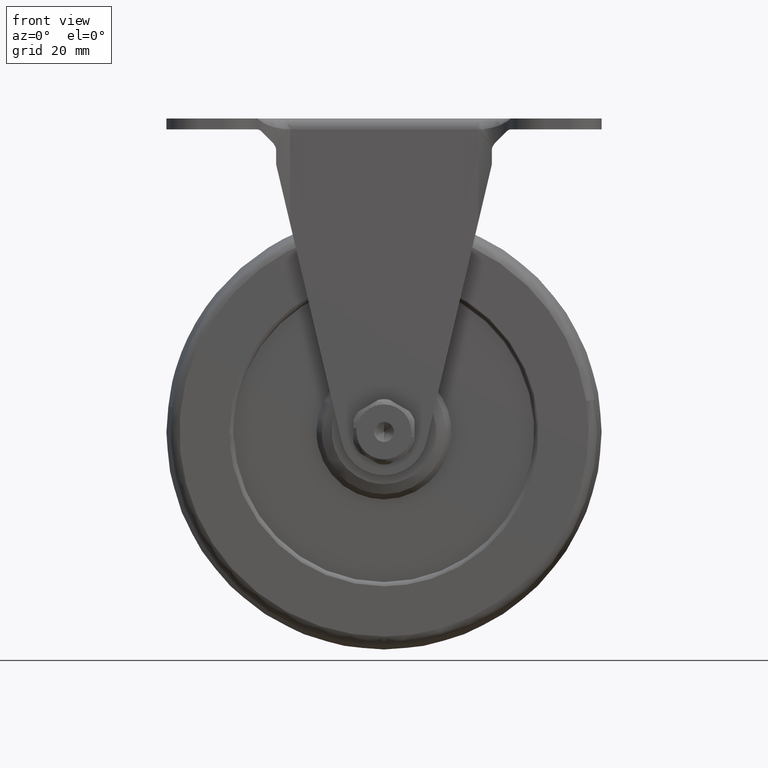
[diagram: clean part render]
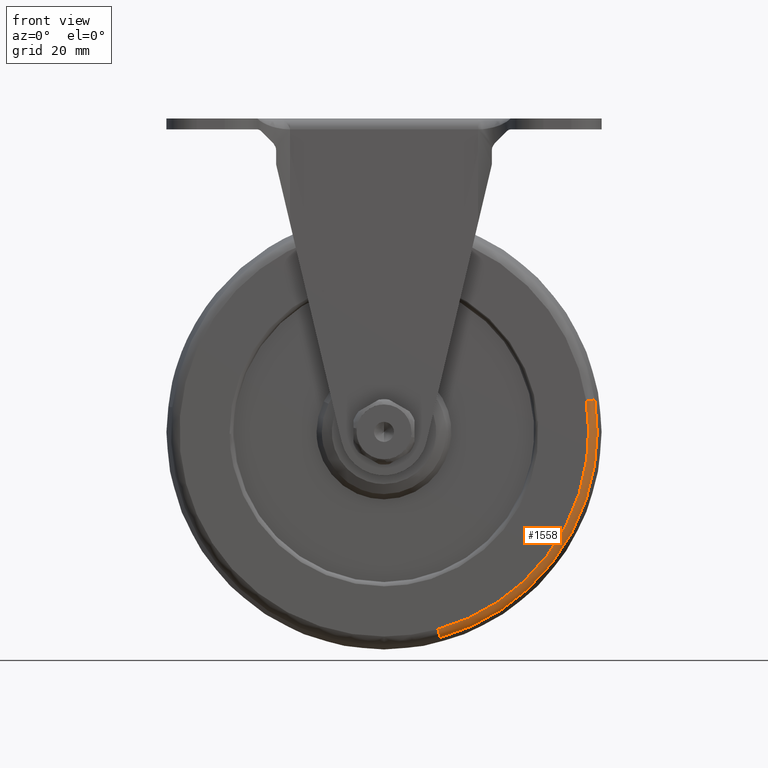
[diagram: same view with one face highlighted and labeled with its STEP entity id]
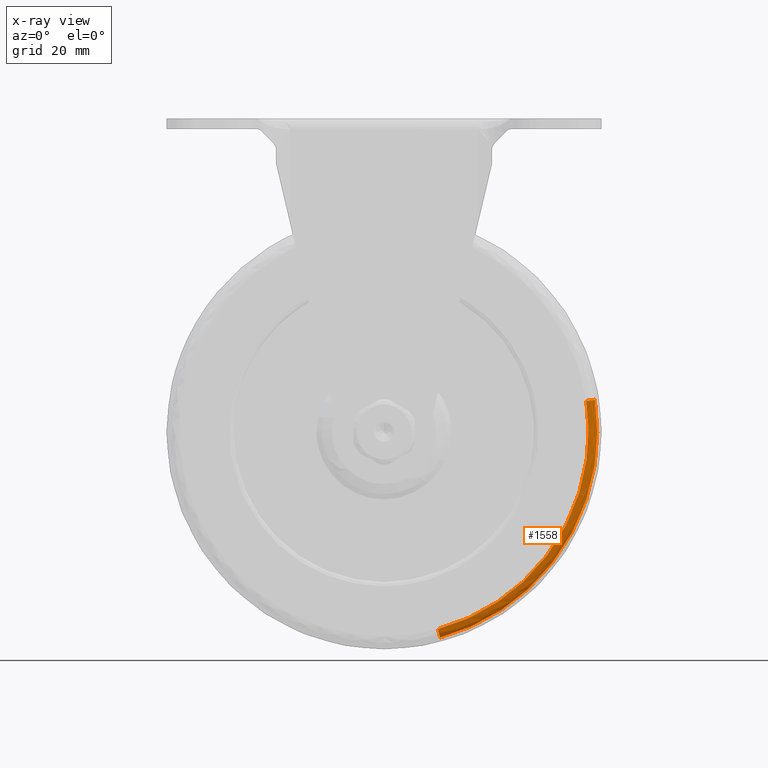
[diagram: x-ray of the same camera — body ghosted, the highlighted face saturated]
A machine part, front view. The second image highlights one B-rep face of the part: STEP entity #1558.
The next image is the same camera in x-ray: the body ghosted, the highlighted face saturated — about 0% of this face is hidden behind the body in this view.
In plain terms, the highlighted face is a freeform B-spline surface patch.
Its self-contained STEP definition (entity closure, byte-faithful):
#1475=CARTESIAN_POINT('',(12.907796018786833,-11.712058143842471,-47.278901333063715));
#1476=CARTESIAN_POINT('',(55.009265280095953,-11.712058143842471,-35.784616102366954));
#1477=CARTESIAN_POINT('',(48.453071682723987,-11.712058143842475,7.362442110671727));
#1478=CARTESIAN_POINT('',(12.854279860059156,-13.617654114750653,-47.082881409559533));
#1479=CARTESIAN_POINT('',(54.781195006291107,-13.617654114750659,-35.636251874069934));
#1480=CARTESIAN_POINT('',(48.252183609249499,-13.617654114750653,7.331917176744626));
#1481=CARTESIAN_POINT('',(12.350567480257224,-13.495963739380105,-45.237874882478017));
#1482=CARTESIAN_POINT('',(52.634519626151508,-13.495963739380104,-34.239797040805804));
#1483=CARTESIAN_POINT('',(46.361356390528641,-13.495963739380107,7.044606064040116));
#1491=(BOUNDED_SURFACE()B_SPLINE_SURFACE(2,2,((#1475,#1478,#1481),(#1476,#1479,#1482),(#1477,#1480,#1483)),.UNSPECIFIED.,.F.,.F.,.U.)B_SPLINE_SURFACE_WITH_KNOTS((3,3),(3,3),(0.0,74.623134613312843),(0.0,3.214122703277336),.UNSPECIFIED.)GEOMETRIC_REPRESENTATION_ITEM()RATIONAL_B_SPLINE_SURFACE(((0.876339980077386,0.633564546790032,0.878599106343619),(0.669044992262315,0.483697191662284,0.670769730548451),(0.915824739661209,0.662110709671508,0.918185654114127)))REPRESENTATION_ITEM('')SURFACE());
#1492=CARTESIAN_POINT('',(12.903178560795300,-11.838233268654760,-47.261988427029607));
#1493=VERTEX_POINT('',#1492);
#1494=CARTESIAN_POINT('',(48.435739606254138,-11.838224634756500,7.359808502445123));
#1495=VERTEX_POINT('',#1494);
#1496=CARTESIAN_POINT('',(12.903178560795300,-11.838233268654761,-47.261988427029607));
#1497=CARTESIAN_POINT('',(48.991710322163286,-11.838231736516008,-37.409319121136342));
#1498=CARTESIAN_POINT('',(48.991709900268219,-11.838225802643230,0.000001324915156));
#1499=CARTESIAN_POINT('',(48.991709858530143,-11.838225215605362,3.700904295788137));
#1500=CARTESIAN_POINT('',(48.435739606254138,-11.838224634756500,7.359808502445124));
#1508=(BOUNDED_CURVE()B_SPLINE_CURVE(2,(#1496,#1497,#1498,#1499,#1500),.UNSPECIFIED.,.F.,.U.)B_SPLINE_CURVE_WITH_KNOTS((3,2,3),(0.044901926709365,0.250000000000000,0.275897579407143),.UNSPECIFIED.)CURVE()GEOMETRIC_REPRESENTATION_ITEM()RATIONAL_B_SPLINE_CURVE((0.913685083964325,0.759712660565874,1.0,0.969659098431859,0.945604244124881))REPRESENTATION_ITEM(''));
#1509=EDGE_CURVE('',#1493,#1495,#1508,.T.);
#1510=ORIENTED_EDGE('',*,*,#1509,.T.);
#1511=CARTESIAN_POINT('',(46.486914194357247,-13.499999999999879,7.063684566809441));
#1512=VERTEX_POINT('',#1511);
#1513=CARTESIAN_POINT('',(48.435739606254138,-11.838224634756504,7.359808502445123));
#1514=CARTESIAN_POINT('',(48.153841316085781,-13.500000120239534,7.316974069640390));
#1515=CARTESIAN_POINT('',(46.486914194357254,-13.499999999999877,7.063684566809441));
#1523=(BOUNDED_CURVE()B_SPLINE_CURVE(2,(#1513,#1514,#1515),.UNSPECIFIED.,.F.,.U.)B_SPLINE_CURVE_WITH_KNOTS((3,3),(-1.703922561972635,-0.288869905686486),.UNSPECIFIED.)CURVE()GEOMETRIC_REPRESENTATION_ITEM()RATIONAL_B_SPLINE_CURVE((0.893832075892330,0.684210662795720,0.895978410156714))REPRESENTATION_ITEM(''));
#1524=EDGE_CURVE('',#1495,#1512,#1523,.T.);
#1525=ORIENTED_EDGE('',*,*,#1524,.T.);
#1526=CARTESIAN_POINT('',(12.384015819748861,-13.499999999999879,-45.360390044835782));
#1527=VERTEX_POINT('',#1526);
#1528=CARTESIAN_POINT('',(12.384015819748862,-13.499999999999885,-45.360390044835782));
#1529=CARTESIAN_POINT('',(47.020515000000010,-13.499999999999877,-35.904145194052809));
#1530=CARTESIAN_POINT('',(47.020515000000003,-13.499999999999879,1.211545E-015));
#1531=CARTESIAN_POINT('',(47.020514999999996,-13.499999999999883,3.551996766316367));
#1532=CARTESIAN_POINT('',(46.486914194357261,-13.499999999999879,7.063684566809441));
#1540=(BOUNDED_CURVE()B_SPLINE_CURVE(2,(#1528,#1529,#1530,#1531,#1532),.UNSPECIFIED.,.F.,.U.)B_SPLINE_CURVE_WITH_KNOTS((3,2,3),(0.044901926753030,0.250000000000000,0.275897584623473),.UNSPECIFIED.)CURVE()GEOMETRIC_REPRESENTATION_ITEM()RATIONAL_B_SPLINE_CURVE((0.913685083898764,0.759712660617031,1.0,0.969659092320549,0.945604234434551))REPRESENTATION_ITEM(''));
#1541=EDGE_CURVE('',#1527,#1512,#1540,.T.);
#1542=ORIENTED_EDGE('',*,*,#1541,.F.);
#1543=CARTESIAN_POINT('',(12.903178560795304,-11.838233268654761,-47.261988427029607));
#1544=CARTESIAN_POINT('',(12.828079807715703,-13.500000137577139,-46.986915398252542));
#1545=CARTESIAN_POINT('',(12.384015819748864,-13.499999999999885,-45.360390044835782));
#1553=(BOUNDED_CURVE()B_SPLINE_CURVE(2,(#1543,#1544,#1545),.UNSPECIFIED.,.F.,.U.)B_SPLINE_CURVE_WITH_KNOTS((3,3),(-1.703917816334094,-0.288869927546481),.UNSPECIFIED.)CURVE()GEOMETRIC_REPRESENTATION_ITEM()RATIONAL_B_SPLINE_CURVE((0.855294160030207,0.654712367828296,0.857349296616730))REPRESENTATION_ITEM(''));
#1554=EDGE_CURVE('',#1493,#1527,#1553,.T.);
#1555=ORIENTED_EDGE('',*,*,#1554,.F.);
#1556=EDGE_LOOP('',(#1510,#1525,#1542,#1555));
#1557=FACE_OUTER_BOUND('',#1556,.T.);
#1558=ADVANCED_FACE('',(#1557),#1491,.T.);